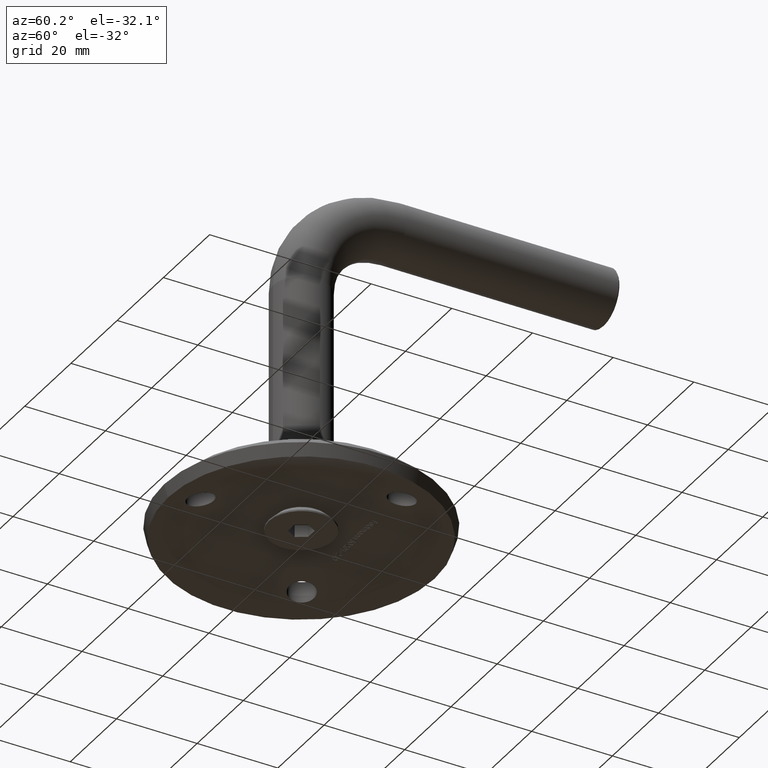
[diagram: clean part render]
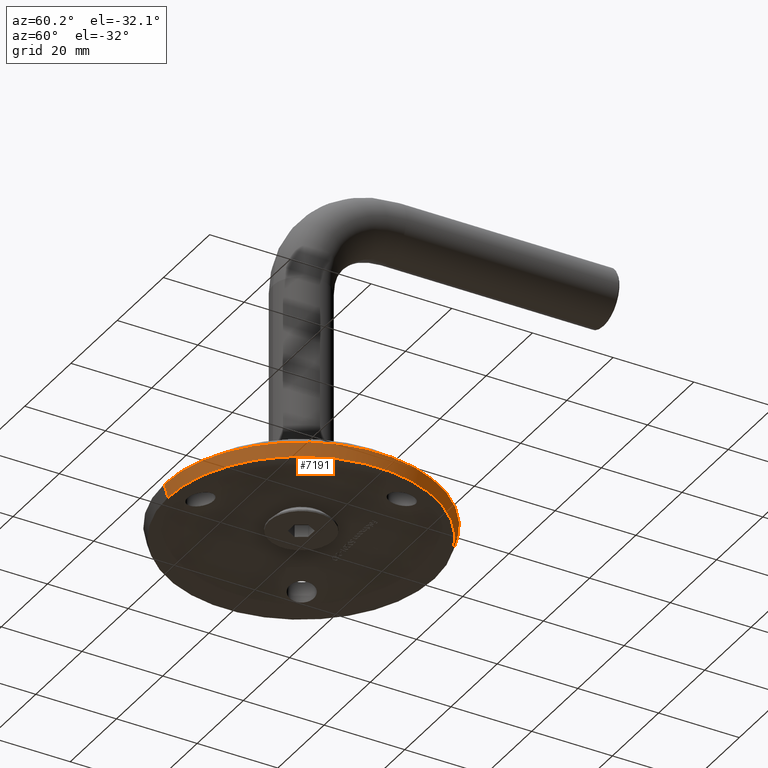
[diagram: same view with one face highlighted and labeled with its STEP entity id]
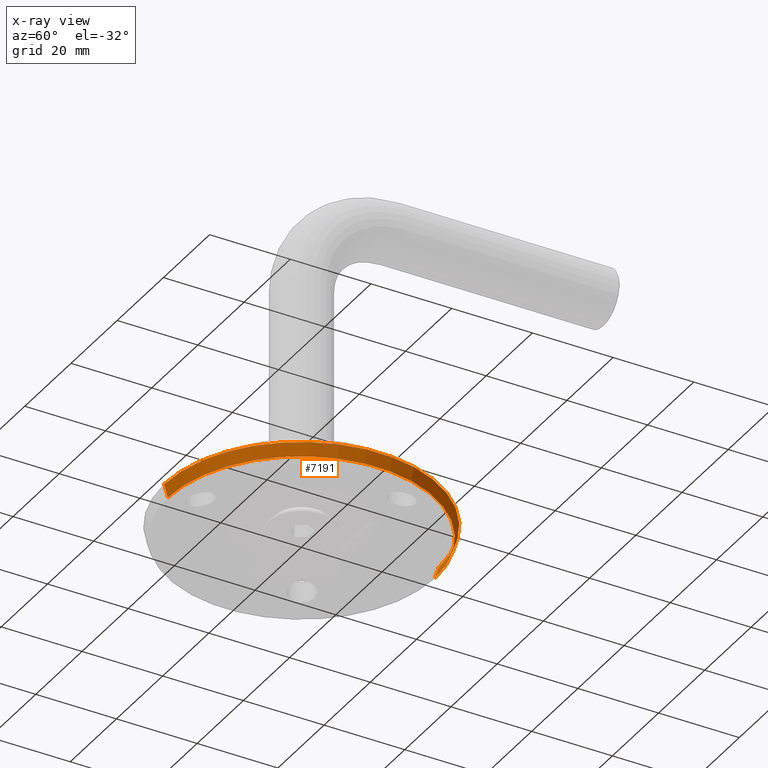
[diagram: x-ray of the same camera — body ghosted, the highlighted face saturated]
A machine part, auxiliary view. The second image highlights one B-rep face of the part: STEP entity #7191.
The next image is the same camera in x-ray: the body ghosted, the highlighted face saturated — about 0% of this face is hidden behind the body in this view.
In plain terms, the highlighted conical surface has half-angle 16.97 deg.
Its self-contained STEP definition (entity closure, byte-faithful):
#411 = CARTESIAN_POINT ( 'NONE',  ( 0.000000000000000000, 0.000000000000000000, 33.06310994183501606 ) ) ;
#669 = AXIS2_PLACEMENT_3D ( 'NONE', #9635, #5374, #12963 ) ;
#767 = VERTEX_POINT ( 'NONE', #4503 ) ;
#845 = ORIENTED_EDGE ( 'NONE', *, *, #10877, .F. ) ;
#935 = VECTOR ( 'NONE', #11129, 1000.000000000000000 ) ;
#1524 = ORIENTED_EDGE ( 'NONE', *, *, #10231, .T. ) ;
#2099 = VERTEX_POINT ( 'NONE', #2449 ) ;
#2133 = AXIS2_PLACEMENT_3D ( 'NONE', #6703, #11050, #2354 ) ;
#2354 = DIRECTION ( 'NONE',  ( 0.000000000000000000, 0.000000000000000000, -1.000000000000000000 ) ) ;
#2449 = CARTESIAN_POINT ( 'NONE',  ( 4.163799117101000559E-15, 3.070234033247562611, 34.00000000000000000 ) ) ;
#2576 = EDGE_LOOP ( 'NONE', ( #845, #4192, #1524, #10898 ) ) ;
#3871 = AXIS2_PLACEMENT_3D ( 'NONE', #10667, #8312, #9471 ) ;
#4192 = ORIENTED_EDGE ( 'NONE', *, *, #9146, .T. ) ;
#4491 = VERTEX_POINT ( 'NONE', #9980 ) ;
#4503 = CARTESIAN_POINT ( 'NONE',  ( 0.000000000000000000, -6.938893903907228378E-15, -33.06310994183502316 ) ) ;
#4667 = EDGE_CURVE ( 'NONE', #4817, #2099, #6671, .T. ) ;
#4784 = CARTESIAN_POINT ( 'NONE',  ( 4.049063176012528006E-15, 0.000000000000000000, -33.06310994183501606 ) ) ;
#4817 = VERTEX_POINT ( 'NONE', #12640 ) ;
#5374 = DIRECTION ( 'NONE',  ( 0.000000000000000000, -1.000000000000000000, 0.000000000000000000 ) ) ;
#5443 = CIRCLE ( 'NONE', #669, 34.00000000000000000 ) ;
#6671 = LINE ( 'NONE', #411, #7004 ) ;
#6703 = CARTESIAN_POINT ( 'NONE',  ( 0.000000000000000000, 0.000000000000000000, 0.000000000000000000 ) ) ;
#7004 = VECTOR ( 'NONE', #10252, 1000.000000000000000 ) ;
#7191 = ADVANCED_FACE ( 'NONE', ( #10046 ), #12892, .T. ) ;
#8312 = DIRECTION ( 'NONE',  ( 0.000000000000000000, 1.000000000000000000, 0.000000000000000000 ) ) ;
#9146 = EDGE_CURVE ( 'NONE', #767, #4491, #9153, .T. ) ;
#9153 = LINE ( 'NONE', #4784, #935 ) ;
#9471 = DIRECTION ( 'NONE',  ( 0.000000000000000000, 0.000000000000000000, 1.000000000000000000 ) ) ;
#9635 = CARTESIAN_POINT ( 'NONE',  ( 0.000000000000000000, 3.070234033247562611, 0.000000000000000000 ) ) ;
#9980 = CARTESIAN_POINT ( 'NONE',  ( 0.000000000000000000, 3.070234033247562611, -34.00000000000000000 ) ) ;
#10046 = FACE_OUTER_BOUND ( 'NONE', #2576, .T. ) ;
#10231 = EDGE_CURVE ( 'NONE', #4491, #2099, #5443, .T. ) ;
#10252 = DIRECTION ( 'NONE',  ( 0.000000000000000000, 0.9564592003886491778, 0.2918660617336416019 ) ) ;
#10667 = CARTESIAN_POINT ( 'NONE',  ( 0.000000000000000000, 0.000000000000000000, 0.000000000000000000 ) ) ;
#10877 = EDGE_CURVE ( 'NONE', #767, #4817, #11864, .T. ) ;
#10898 = ORIENTED_EDGE ( 'NONE', *, *, #4667, .F. ) ;
#11050 = DIRECTION ( 'NONE',  ( 0.000000000000000000, -1.000000000000000000, 0.000000000000000000 ) ) ;
#11129 = DIRECTION ( 'NONE',  ( 3.574328382818480219E-17, 0.9564592003886491778, -0.2918660617336416019 ) ) ;
#11864 = CIRCLE ( 'NONE', #2133, 33.06310994183501606 ) ;
#12640 = CARTESIAN_POINT ( 'NONE',  ( 4.049063176012528795E-15, -6.938893903907228378E-15, 33.06310994183502316 ) ) ;
#12892 = CONICAL_SURFACE ( 'NONE', #3871, 33.06310994183501606, 0.2961772688391122177 ) ;
#12963 = DIRECTION ( 'NONE',  ( 0.000000000000000000, 0.000000000000000000, -1.000000000000000000 ) ) ;